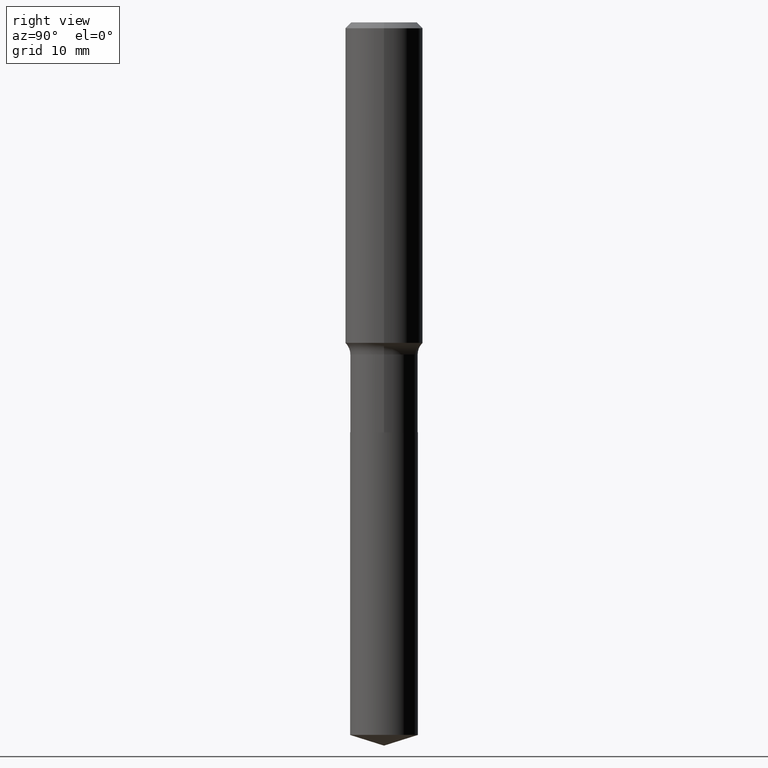
[diagram: clean part render]
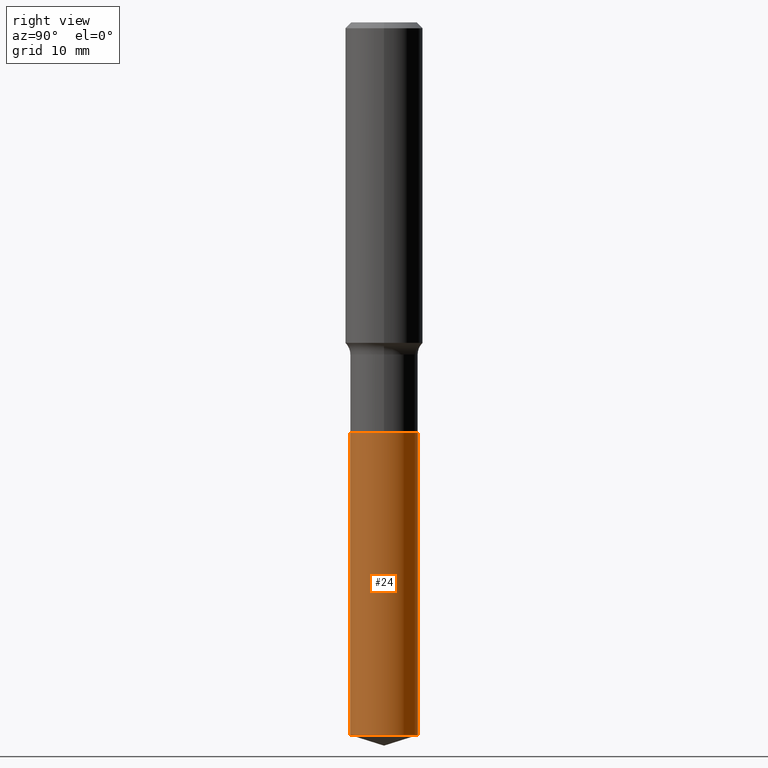
[diagram: same view with one face highlighted and labeled with its STEP entity id]
A machine part, right view. The second image highlights one B-rep face of the part: STEP entity #24.
In plain terms, the highlighted cylindrical surface (edge-blend (fillet) strip) has radius 4.1669 mm, axis along (-0, 0, 1).
Its self-contained STEP definition (entity closure, byte-faithful):
#24 = ADVANCED_FACE ( 'NONE', ( #131 ), #250, .T. ) ;
#34 = DIRECTION ( 'NONE',  ( -2.445372018377083114E-29, 3.491619944493098232E-15, 1.000000000000000000 ) ) ;
#44 = VERTEX_POINT ( 'NONE', #58 ) ;
#58 = CARTESIAN_POINT ( 'NONE',  ( 1.165645358014528773E-15, 0.1640499999999879555, -3.448275233684403140 ) ) ;
#68 = AXIS2_PLACEMENT_3D ( 'NONE', #246, #399, #91 ) ;
#91 = DIRECTION ( 'NONE',  ( -6.982962677686265133E-15, -1.000000000000000000, 3.330506545156066257E-15 ) ) ;
#110 = VERTEX_POINT ( 'NONE', #279 ) ;
#111 = CARTESIAN_POINT ( 'NONE',  ( 1.165645358014492485E-15, 0.1640499999999930625, -1.984300000000000175 ) ) ;
#131 = FACE_OUTER_BOUND ( 'NONE', #300, .T. ) ;
#155 = AXIS2_PLACEMENT_3D ( 'NONE', #266, #34, #298 ) ;
#199 = ORIENTED_EDGE ( 'NONE', *, *, #363, .T. ) ;
#222 = ORIENTED_EDGE ( 'NONE', *, *, #471, .F. ) ;
#236 = EDGE_CURVE ( 'NONE', #44, #344, #372, .T. ) ;
#238 = VECTOR ( 'NONE', #348, 39.37007874015748143 ) ;
#239 = VERTEX_POINT ( 'NONE', #449 ) ;
#246 = CARTESIAN_POINT ( 'NONE',  ( 4.852543752113166066E-29, -6.928146420666452798E-15, -1.984299999999999731 ) ) ;
#250 = CYLINDRICAL_SURFACE ( 'NONE', #68, 0.1640500000000000014 ) ;
#260 = AXIS2_PLACEMENT_3D ( 'NONE', #272, #421, #429 ) ;
#266 = CARTESIAN_POINT ( 'NONE',  ( 4.852543752113166066E-29, -6.928146420666452798E-15, -1.984299999999999731 ) ) ;
#271 = EDGE_CURVE ( 'NONE', #110, #344, #445, .T. ) ;
#272 = CARTESIAN_POINT ( 'NONE',  ( 8.432507824162055663E-29, -1.203979154484285779E-14, -3.448275233684402696 ) ) ;
#279 = CARTESIAN_POINT ( 'NONE',  ( -1.145555027274383345E-15, -0.1640500000000069125, -1.984299999999999065 ) ) ;
#298 = DIRECTION ( 'NONE',  ( -6.982962677686265133E-15, -1.000000000000000000, 3.330506545156066257E-15 ) ) ;
#300 = EDGE_LOOP ( 'NONE', ( #199, #447, #302, #222 ) ) ;
#302 = ORIENTED_EDGE ( 'NONE', *, *, #271, .F. ) ;
#311 = LINE ( 'NONE', #463, #238 ) ;
#344 = VERTEX_POINT ( 'NONE', #489 ) ;
#348 = DIRECTION ( 'NONE',  ( -2.445372018377082834E-29, 3.491619944493097838E-15, 1.000000000000000000 ) ) ;
#363 = EDGE_CURVE ( 'NONE', #239, #44, #484, .T. ) ;
#372 = LINE ( 'NONE', #111, #375 ) ;
#375 = VECTOR ( 'NONE', #448, 39.37007874015748143 ) ;
#399 = DIRECTION ( 'NONE',  ( -2.445372018377083114E-29, 3.491619944493098232E-15, 1.000000000000000000 ) ) ;
#421 = DIRECTION ( 'NONE',  ( -2.445372018377083114E-29, 3.491619944493098232E-15, 1.000000000000000000 ) ) ;
#429 = DIRECTION ( 'NONE',  ( -6.982962677686265133E-15, -1.000000000000000000, 3.330506545156066257E-15 ) ) ;
#445 = CIRCLE ( 'NONE', #155, 0.1640500000000000014 ) ;
#447 = ORIENTED_EDGE ( 'NONE', *, *, #236, .T. ) ;
#448 = DIRECTION ( 'NONE',  ( -2.445372018377082834E-29, 3.491619944493097838E-15, 1.000000000000000000 ) ) ;
#449 = CARTESIAN_POINT ( 'NONE',  ( -1.145555027274347649E-15, -0.1640500000000120751, -3.448275233684402252 ) ) ;
#463 = CARTESIAN_POINT ( 'NONE',  ( -1.145555027274383345E-15, -0.1640500000000069125, -1.984299999999999065 ) ) ;
#471 = EDGE_CURVE ( 'NONE', #239, #110, #311, .T. ) ;
#484 = CIRCLE ( 'NONE', #260, 0.1640500000000000014 ) ;
#489 = CARTESIAN_POINT ( 'NONE',  ( 1.165645358014528773E-15, 0.1640499999999930625, -1.984300000000000175 ) ) ;